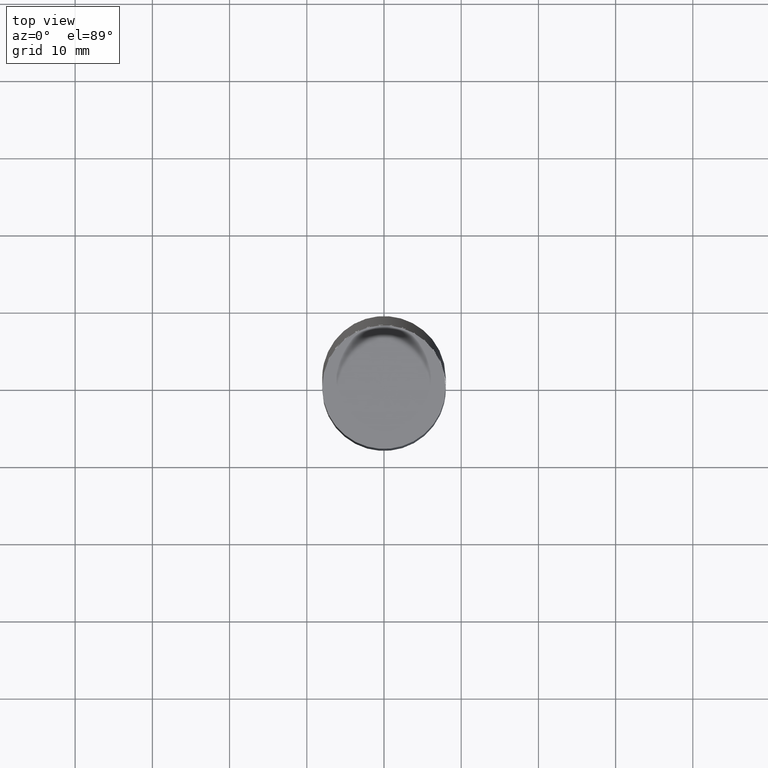
[diagram: clean part render]
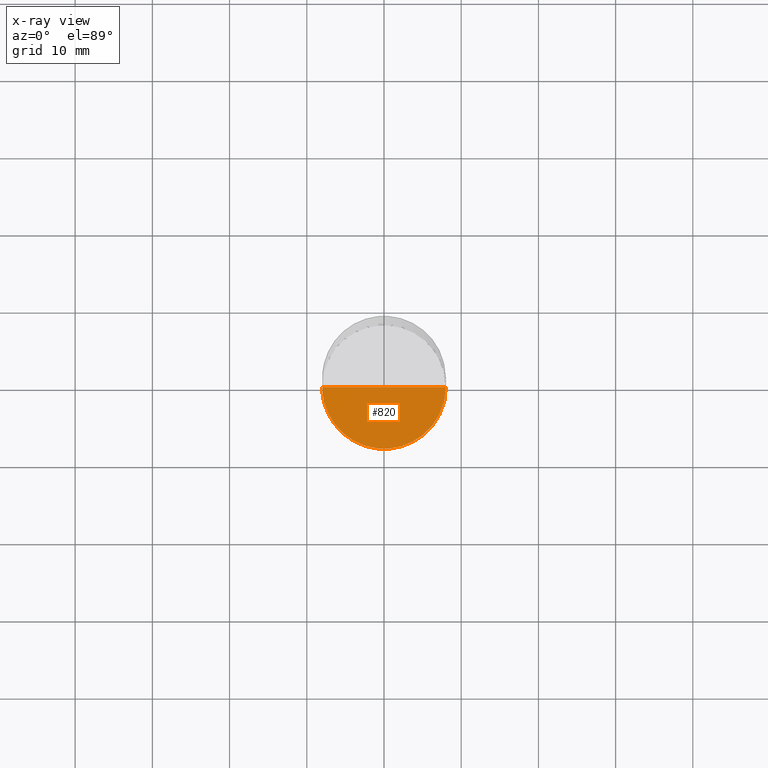
[diagram: x-ray — body ghosted, one internal face saturated and labeled with its STEP entity id]
A machine part, top view, then the same camera in x-ray: the body is ghosted and one INTERNAL B-rep face — a face not visible from any outside direction — is saturated and labeled: STEP entity #820.
In plain terms, the highlighted face is a freeform B-spline surface patch.
Its self-contained STEP definition (entity closure, byte-faithful):
#671=CARTESIAN_POINT('',(8.0,0.0,-5.0));
#675=CARTESIAN_POINT('',(-8.0,0.0,-5.0));
#676=CARTESIAN_POINT('',(0.0,0.0,-5.0));
#683=CARTESIAN_POINT('',(-8.0,-8.0,-5.0));
#684=CARTESIAN_POINT('',(0.0,-8.0,-5.0));
#685=CARTESIAN_POINT('',(8.0,-8.0,-5.0));
#805=(
BOUNDED_SURFACE()
B_SPLINE_SURFACE(1,2,(
(#675,#683,#684,#685,#671),
(#676,#676,#676,#676,#676)
), .UNSPECIFIED.,.F.,.F.,.F.)
B_SPLINE_SURFACE_WITH_KNOTS((2,2),(3,2,3),(
0.0,1.0),(
0.0,0.5,1.0), .UNSPECIFIED.)
GEOMETRIC_REPRESENTATION_ITEM()
RATIONAL_B_SPLINE_SURFACE(((1.0,0.707106781187,1.0,0.707106781187,1.0),
(1.0,0.707106781187,1.0,0.707106781187,1.0)
))
REPRESENTATION_ITEM('')
SURFACE()
);
#806=(
BOUNDED_CURVE()
B_SPLINE_CURVE(2,(#671,#685,#684,#683,#675),.UNSPECIFIED.,.F.,.F.)
B_SPLINE_CURVE_WITH_KNOTS((3,2,3),
(0.0,0.5,1.0),.UNSPECIFIED.)
CURVE()
GEOMETRIC_REPRESENTATION_ITEM()
RATIONAL_B_SPLINE_CURVE((1.0,0.707106781187,1.0,0.707106781187,1.0))
REPRESENTATION_ITEM('')
);
#807=(
BOUNDED_CURVE()
B_SPLINE_CURVE(1,(#675,#676),.UNSPECIFIED.,.F.,.F.)
B_SPLINE_CURVE_WITH_KNOTS((2,2),
(0.0,1.0),.UNSPECIFIED.)
CURVE()
GEOMETRIC_REPRESENTATION_ITEM()
RATIONAL_B_SPLINE_CURVE((1.0,1.0))
REPRESENTATION_ITEM('')
);
#808=(
BOUNDED_CURVE()
B_SPLINE_CURVE(1,(#676,#671),.UNSPECIFIED.,.F.,.F.)
B_SPLINE_CURVE_WITH_KNOTS((2,2),
(0.0,1.0),.UNSPECIFIED.)
CURVE()
GEOMETRIC_REPRESENTATION_ITEM()
RATIONAL_B_SPLINE_CURVE((1.0,1.0))
REPRESENTATION_ITEM('')
);
#809=VERTEX_POINT('',#671);
#810=VERTEX_POINT('',#675);
#811=VERTEX_POINT('',#676);
#812=EDGE_CURVE('',#809,#810,#806,.T.);
#813=EDGE_CURVE('',#810,#811,#807,.T.);
#814=EDGE_CURVE('',#811,#809,#808,.T.);
#815=ORIENTED_EDGE('',*,*,#812,.T.);
#816=ORIENTED_EDGE('',*,*,#813,.T.);
#817=ORIENTED_EDGE('',*,*,#814,.T.);
#818=EDGE_LOOP('',(#815,#816,#817));
#819=FACE_OUTER_BOUND('',#818,.T.);
#820=ADVANCED_FACE('',(#819),#805,.T.);